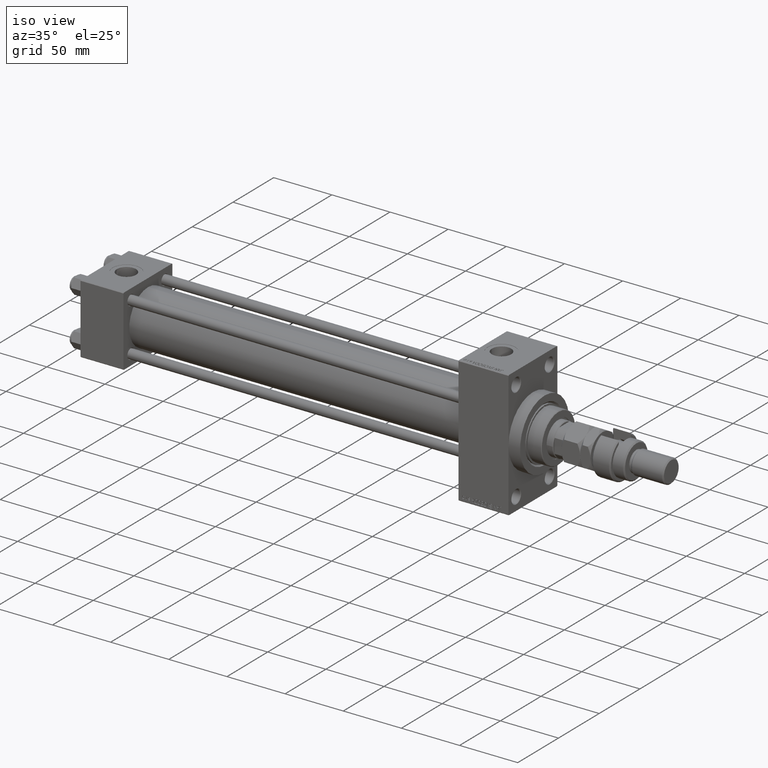
[diagram: clean part render]
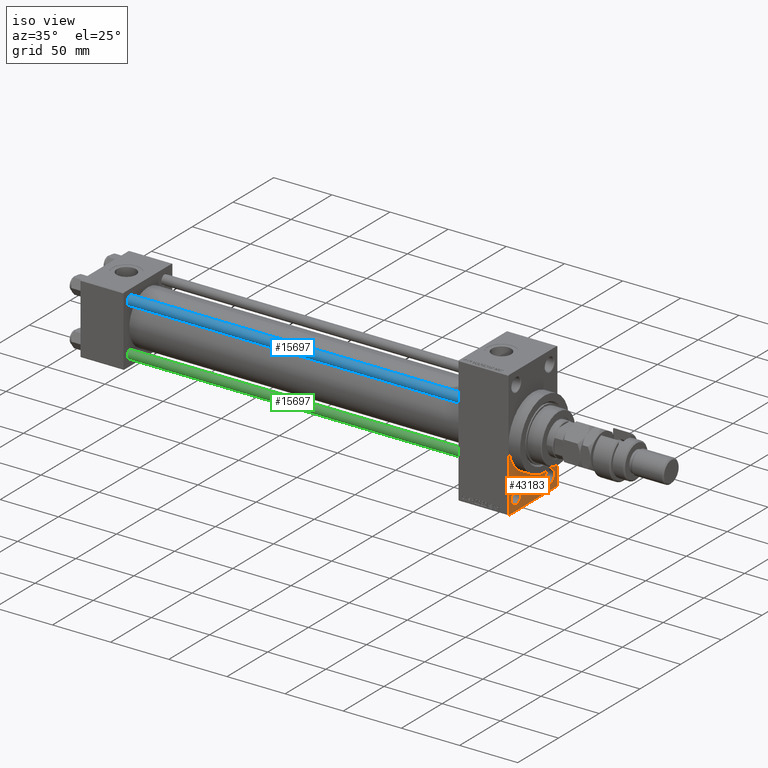
[diagram: same view with three faces highlighted in distinct colors, each labeled with its STEP entity id]
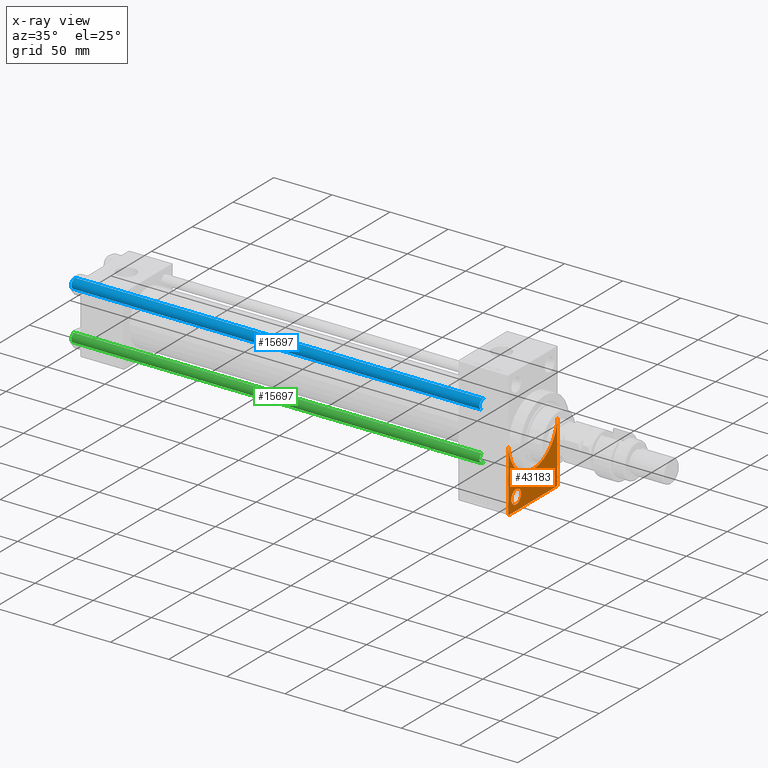
[diagram: x-ray of the same camera — body ghosted, the three highlighted faces saturated]
A machine part, iso view with three faces highlighted in distinct colors.
The next image is the same camera in x-ray (body ghosted, the three faces saturated) — at least one of them is partly hidden behind the body in this view.
Their STEP definitions:

[orange] entity #43183 — the highlighted planar face has unit normal (-1, 0, 0).
#890 = VERTEX_POINT ( 'NONE', #45417 ) ;
#909 = VERTEX_POINT ( 'NONE', #34768 ) ;
#1761 = AXIS2_PLACEMENT_3D ( 'NONE', #18986, #43639, #35157 ) ;
#3053 = AXIS2_PLACEMENT_3D ( 'NONE', #50189, #17084, #45706 ) ;
#3059 = VERTEX_POINT ( 'NONE', #16204 ) ;
#3145 = LINE ( 'NONE', #11353, #41216 ) ;
#3520 = EDGE_CURVE ( 'NONE', #47445, #26583, #35987, .T. ) ;
#3994 = CARTESIAN_POINT ( 'NONE',  ( 367.9999999999999432, -20.50000000000000000, -43.50000000000000000 ) ) ;
#5005 = CARTESIAN_POINT ( 'NONE',  ( 367.9999999999999432, 0.000000000000000000, 0.000000000000000000 ) ) ;
#6014 = CARTESIAN_POINT ( 'NONE',  ( 367.9999999999999432, 30.00000000000000000, 0.000000000000000000 ) ) ;
#6170 = CARTESIAN_POINT ( 'NONE',  ( 367.9999999999999432, -30.00000000000000000, 0.000000000000000000 ) ) ;
#6185 = EDGE_LOOP ( 'NONE', ( #10325, #20421 ) ) ;
#6550 = FACE_BOUND ( 'NONE', #6185, .T. ) ;
#6682 = VECTOR ( 'NONE', #21996, 1000.000000000000000 ) ;
#6980 = EDGE_CURVE ( 'NONE', #890, #3059, #3145, .T. ) ;
#7063 = EDGE_CURVE ( 'NONE', #909, #26442, #33605, .T. ) ;
#7573 = DIRECTION ( 'NONE',  ( -1.000000000000000000, 0.000000000000000000, -0.000000000000000000 ) ) ;
#8234 = DIRECTION ( 'NONE',  ( 0.000000000000000000, 0.000000000000000000, 1.000000000000000000 ) ) ;
#9235 = DIRECTION ( 'NONE',  ( 0.000000000000000000, 0.000000000000000000, -1.000000000000000000 ) ) ;
#9362 = DIRECTION ( 'NONE',  ( 0.000000000000000000, -1.000000000000000000, -1.156482317317871478E-16 ) ) ;
#9615 = CARTESIAN_POINT ( 'NONE',  ( 367.9999999999999432, 29.99999999999999645, -54.49999999999999289 ) ) ;
#9633 = EDGE_CURVE ( 'NONE', #890, #35629, #41449, .T. ) ;
#10325 = ORIENTED_EDGE ( 'NONE', *, *, #26020, .T. ) ;
#10395 = VERTEX_POINT ( 'NONE', #6014 ) ;
#11303 = LINE ( 'NONE', #18743, #34129 ) ;
#11353 = CARTESIAN_POINT ( 'NONE',  ( 367.9999999999999432, 29.99999999999999645, -54.00000000000004974 ) ) ;
#12246 = AXIS2_PLACEMENT_3D ( 'NONE', #16635, #16362, #24839 ) ;
#12336 = EDGE_CURVE ( 'NONE', #10395, #3059, #46372, .T. ) ;
#12402 = AXIS2_PLACEMENT_3D ( 'NONE', #31438, #7573, #38862 ) ;
#12664 = EDGE_CURVE ( 'NONE', #19702, #35629, #23688, .T. ) ;
#13547 = EDGE_CURVE ( 'NONE', #33822, #45603, #30449, .T. ) ;
#14746 = DIRECTION ( 'NONE',  ( -0.000000000000000000, 0.000000000000000000, 1.000000000000000000 ) ) ;
#15242 = AXIS2_PLACEMENT_3D ( 'NONE', #3994, #20690, #8234 ) ;
#15287 = CARTESIAN_POINT ( 'NONE',  ( 367.9999999999999432, 0.000000000000000000, 0.000000000000000000 ) ) ;
#16168 = ORIENTED_EDGE ( 'NONE', *, *, #6980, .T. ) ;
#16178 = AXIS2_PLACEMENT_3D ( 'NONE', #15287, #30664, #14746 ) ;
#16204 = CARTESIAN_POINT ( 'NONE',  ( 367.9999999999999432, 29.99999999999999645, -54.00000000000004974 ) ) ;
#16362 = DIRECTION ( 'NONE',  ( -1.000000000000000000, 0.000000000000000000, -0.000000000000000000 ) ) ;
#16635 = CARTESIAN_POINT ( 'NONE',  ( 367.9999999999999432, 20.50000000000000000, -43.50000000000000000 ) ) ;
#17084 = DIRECTION ( 'NONE',  ( -1.000000000000000000, 0.000000000000000000, -0.000000000000000000 ) ) ;
#17750 = VECTOR ( 'NONE', #51531, 1000.000000000000000 ) ;
#18743 = CARTESIAN_POINT ( 'NONE',  ( 367.9999999999999432, -30.00000000000000000, 54.50000000000000000 ) ) ;
#18986 = CARTESIAN_POINT ( 'NONE',  ( 367.9999999999999432, 0.000000000000000000, 0.000000000000000000 ) ) ;
#19686 = ORIENTED_EDGE ( 'NONE', *, *, #22604, .T. ) ;
#19702 = VERTEX_POINT ( 'NONE', #25842 ) ;
#20421 = ORIENTED_EDGE ( 'NONE', *, *, #7063, .T. ) ;
#20690 = DIRECTION ( 'NONE',  ( -1.000000000000000000, 0.000000000000000000, -0.000000000000000000 ) ) ;
#21201 = ORIENTED_EDGE ( 'NONE', *, *, #42360, .F. ) ;
#21996 = DIRECTION ( 'NONE',  ( 0.000000000000000000, 0.000000000000000000, -1.000000000000000000 ) ) ;
#22604 = EDGE_CURVE ( 'NONE', #47445, #19702, #11303, .T. ) ;
#22706 = PLANE ( 'NONE',  #16178 ) ;
#22729 = ORIENTED_EDGE ( 'NONE', *, *, #9633, .F. ) ;
#23688 = LINE ( 'NONE', #47552, #17750 ) ;
#23928 = CARTESIAN_POINT ( 'NONE',  ( 367.9999999999999432, -20.50000000000000000, -37.49999999999999289 ) ) ;
#24802 = CARTESIAN_POINT ( 'NONE',  ( 367.9999999999999432, -29.50000000000000355, -54.50000000000000000 ) ) ;
#24839 = DIRECTION ( 'NONE',  ( 0.000000000000000000, 0.000000000000000000, 1.000000000000000000 ) ) ;
#25842 = CARTESIAN_POINT ( 'NONE',  ( 367.9999999999999432, -30.00000000000000000, -53.99999999999998579 ) ) ;
#26020 = EDGE_CURVE ( 'NONE', #26442, #909, #38524, .T. ) ;
#26022 = VECTOR ( 'NONE', #9362, 1000.000000000000000 ) ;
#26442 = VERTEX_POINT ( 'NONE', #33255 ) ;
#26583 = VERTEX_POINT ( 'NONE', #31620 ) ;
#27143 = CIRCLE ( 'NONE', #1761, 30.00000000000000000 ) ;
#27348 = ORIENTED_EDGE ( 'NONE', *, *, #32422, .T. ) ;
#27567 = EDGE_LOOP ( 'NONE', ( #19686, #33490, #22729, #16168, #28717, #21201, #50956 ) ) ;
#28415 = EDGE_LOOP ( 'NONE', ( #27348, #35790 ) ) ;
#28717 = ORIENTED_EDGE ( 'NONE', *, *, #12336, .F. ) ;
#30449 = CIRCLE ( 'NONE', #15242, 6.000000000000005329 ) ;
#30664 = DIRECTION ( 'NONE',  ( -1.000000000000000000, 0.000000000000000000, -0.000000000000000000 ) ) ;
#30671 = DIRECTION ( 'NONE',  ( 0.000000000000000000, 0.000000000000000000, -1.000000000000000000 ) ) ;
#31438 = CARTESIAN_POINT ( 'NONE',  ( 367.9999999999999432, 20.50000000000000000, -43.50000000000000000 ) ) ;
#31620 = CARTESIAN_POINT ( 'NONE',  ( 367.9999999999999432, 3.673940397442059178E-15, -30.00000000000000000 ) ) ;
#32422 = EDGE_CURVE ( 'NONE', #45603, #33822, #51298, .T. ) ;
#33255 = CARTESIAN_POINT ( 'NONE',  ( 367.9999999999999432, 20.50000000000000000, -49.50000000000000000 ) ) ;
#33490 = ORIENTED_EDGE ( 'NONE', *, *, #12664, .T. ) ;
#33605 = CIRCLE ( 'NONE', #12402, 6.000000000000005329 ) ;
#33822 = VERTEX_POINT ( 'NONE', #23928 ) ;
#34129 = VECTOR ( 'NONE', #30671, 1000.000000000000000 ) ;
#34768 = CARTESIAN_POINT ( 'NONE',  ( 367.9999999999999432, 20.50000000000000000, -37.49999999999999289 ) ) ;
#35157 = DIRECTION ( 'NONE',  ( 0.000000000000000000, 0.000000000000000000, -1.000000000000000000 ) ) ;
#35629 = VERTEX_POINT ( 'NONE', #24802 ) ;
#35790 = ORIENTED_EDGE ( 'NONE', *, *, #13547, .T. ) ;
#35987 = CIRCLE ( 'NONE', #43590, 30.00000000000000000 ) ;
#38524 = CIRCLE ( 'NONE', #12246, 6.000000000000005329 ) ;
#38633 = FACE_OUTER_BOUND ( 'NONE', #27567, .T. ) ;
#38862 = DIRECTION ( 'NONE',  ( 0.000000000000000000, 0.000000000000000000, 1.000000000000000000 ) ) ;
#38947 = DIRECTION ( 'NONE',  ( -0.000000000000000000, 0.7071067811865868746, 0.7071067811865081598 ) ) ;
#41216 = VECTOR ( 'NONE', #38947, 1000.000000000000000 ) ;
#41449 = LINE ( 'NONE', #9615, #26022 ) ;
#42360 = EDGE_CURVE ( 'NONE', #26583, #10395, #27143, .T. ) ;
#42387 = CARTESIAN_POINT ( 'NONE',  ( 367.9999999999999432, -20.50000000000000000, -49.50000000000000000 ) ) ;
#43183 = ADVANCED_FACE ( 'NONE', ( #51069, #6550, #38633 ), #22706, .F. ) ;
#43590 = AXIS2_PLACEMENT_3D ( 'NONE', #5005, #45556, #9235 ) ;
#43639 = DIRECTION ( 'NONE',  ( 1.000000000000000000, 0.000000000000000000, 0.000000000000000000 ) ) ;
#45417 = CARTESIAN_POINT ( 'NONE',  ( 367.9999999999999432, 29.49999999999999645, -54.49999999999999289 ) ) ;
#45556 = DIRECTION ( 'NONE',  ( 1.000000000000000000, 0.000000000000000000, 0.000000000000000000 ) ) ;
#45603 = VERTEX_POINT ( 'NONE', #42387 ) ;
#45706 = DIRECTION ( 'NONE',  ( 0.000000000000000000, 0.000000000000000000, 1.000000000000000000 ) ) ;
#45859 = CARTESIAN_POINT ( 'NONE',  ( 367.9999999999999432, 29.99999999999999645, 54.49999999999999289 ) ) ;
#46372 = LINE ( 'NONE', #45859, #6682 ) ;
#47445 = VERTEX_POINT ( 'NONE', #6170 ) ;
#47552 = CARTESIAN_POINT ( 'NONE',  ( 367.9999999999999432, -29.50000000000000355, -54.50000000000000000 ) ) ;
#50189 = CARTESIAN_POINT ( 'NONE',  ( 367.9999999999999432, -20.50000000000000000, -43.50000000000000000 ) ) ;
#50956 = ORIENTED_EDGE ( 'NONE', *, *, #3520, .F. ) ;
#51069 = FACE_BOUND ( 'NONE', #28415, .T. ) ;
#51298 = CIRCLE ( 'NONE', #3053, 6.000000000000005329 ) ;
#51531 = DIRECTION ( 'NONE',  ( 0.000000000000000000, 0.7071067811865352493, -0.7071067811865597852 ) ) ;

[blue] entity #15697 — the highlighted cylindrical surface (edge-blend (fillet) strip) has radius 4 mm, axis along (1, 0, 0).
#1319 = VECTOR ( 'NONE', #33995, 1000.000000000000000 ) ;
#1652 = CARTESIAN_POINT ( 'NONE',  ( 4.000000000000000000, 4.898587196589412829E-16, 352.0000000000000000 ) ) ;
#1845 = EDGE_CURVE ( 'NONE', #18030, #20587, #42463, .T. ) ;
#2592 = VERTEX_POINT ( 'NONE', #18935 ) ;
#3336 = EDGE_CURVE ( 'NONE', #20587, #33768, #42003, .T. ) ;
#9138 = EDGE_CURVE ( 'NONE', #2592, #33768, #45611, .T. ) ;
#13770 = DIRECTION ( 'NONE',  ( -0.000000000000000000, -0.000000000000000000, -1.000000000000000000 ) ) ;
#15697 = ADVANCED_FACE ( 'NONE', ( #38503 ), #35302, .T. ) ;
#17975 = CIRCLE ( 'NONE', #45904, 4.000000000000000000 ) ;
#18030 = VERTEX_POINT ( 'NONE', #26238 ) ;
#18342 = CARTESIAN_POINT ( 'NONE',  ( 0.000000000000000000, 0.000000000000000000, 352.0000000000000000 ) ) ;
#18864 = DIRECTION ( 'NONE',  ( -0.000000000000000000, -0.000000000000000000, -1.000000000000000000 ) ) ;
#18935 = CARTESIAN_POINT ( 'NONE',  ( -4.000000000000000000, 0.000000000000000000, 351.5000000000000000 ) ) ;
#19072 = CARTESIAN_POINT ( 'NONE',  ( 0.000000000000000000, 0.000000000000000000, 0.5000000000000004441 ) ) ;
#20587 = VERTEX_POINT ( 'NONE', #27155 ) ;
#22779 = DIRECTION ( 'NONE',  ( -0.000000000000000000, -0.000000000000000000, 1.000000000000000000 ) ) ;
#25214 = DIRECTION ( 'NONE',  ( 0.000000000000000000, 0.000000000000000000, -1.000000000000000000 ) ) ;
#26238 = CARTESIAN_POINT ( 'NONE',  ( 4.000000000000000000, 4.898587196589412829E-16, 351.5000000000000000 ) ) ;
#26757 = ORIENTED_EDGE ( 'NONE', *, *, #47717, .T. ) ;
#27155 = CARTESIAN_POINT ( 'NONE',  ( 4.000000000000000000, 4.898587196589412829E-16, 0.5000000000000004441 ) ) ;
#29702 = CARTESIAN_POINT ( 'NONE',  ( -4.000000000000000000, 0.000000000000000000, 352.0000000000000000 ) ) ;
#31899 = CARTESIAN_POINT ( 'NONE',  ( -4.000000000000000000, 0.000000000000000000, 0.5000000000000004441 ) ) ;
#33694 = DIRECTION ( 'NONE',  ( 1.000000000000000000, 0.000000000000000000, 0.000000000000000000 ) ) ;
#33768 = VERTEX_POINT ( 'NONE', #31899 ) ;
#33995 = DIRECTION ( 'NONE',  ( -0.000000000000000000, -0.000000000000000000, -1.000000000000000000 ) ) ;
#34714 = DIRECTION ( 'NONE',  ( 1.000000000000000000, 0.000000000000000000, 0.000000000000000000 ) ) ;
#35302 = CYLINDRICAL_SURFACE ( 'NONE', #51569, 4.000000000000000000 ) ;
#35333 = VECTOR ( 'NONE', #13770, 1000.000000000000000 ) ;
#38372 = ORIENTED_EDGE ( 'NONE', *, *, #3336, .T. ) ;
#38503 = FACE_OUTER_BOUND ( 'NONE', #48285, .T. ) ;
#42003 = CIRCLE ( 'NONE', #47830, 4.000000000000000000 ) ;
#42463 = LINE ( 'NONE', #1652, #1319 ) ;
#44399 = ORIENTED_EDGE ( 'NONE', *, *, #9138, .F. ) ;
#45611 = LINE ( 'NONE', #29702, #35333 ) ;
#45904 = AXIS2_PLACEMENT_3D ( 'NONE', #49075, #25214, #33694 ) ;
#46830 = ORIENTED_EDGE ( 'NONE', *, *, #1845, .T. ) ;
#47493 = DIRECTION ( 'NONE',  ( -1.000000000000000000, 0.000000000000000000, 0.000000000000000000 ) ) ;
#47717 = EDGE_CURVE ( 'NONE', #2592, #18030, #17975, .T. ) ;
#47830 = AXIS2_PLACEMENT_3D ( 'NONE', #19072, #22779, #34714 ) ;
#48285 = EDGE_LOOP ( 'NONE', ( #26757, #46830, #38372, #44399 ) ) ;
#49075 = CARTESIAN_POINT ( 'NONE',  ( 0.000000000000000000, 0.000000000000000000, 351.5000000000000000 ) ) ;
#51569 = AXIS2_PLACEMENT_3D ( 'NONE', #18342, #18864, #47493 ) ;

[green] entity #15697 — the highlighted cylindrical surface (edge-blend (fillet) strip) has radius 4 mm, axis along (-1, 0, 0).
#1319 = VECTOR ( 'NONE', #33995, 1000.000000000000000 ) ;
#1652 = CARTESIAN_POINT ( 'NONE',  ( 4.000000000000000000, 4.898587196589412829E-16, 352.0000000000000000 ) ) ;
#1845 = EDGE_CURVE ( 'NONE', #18030, #20587, #42463, .T. ) ;
#2592 = VERTEX_POINT ( 'NONE', #18935 ) ;
#3336 = EDGE_CURVE ( 'NONE', #20587, #33768, #42003, .T. ) ;
#9138 = EDGE_CURVE ( 'NONE', #2592, #33768, #45611, .T. ) ;
#13770 = DIRECTION ( 'NONE',  ( -0.000000000000000000, -0.000000000000000000, -1.000000000000000000 ) ) ;
#15697 = ADVANCED_FACE ( 'NONE', ( #38503 ), #35302, .T. ) ;
#17975 = CIRCLE ( 'NONE', #45904, 4.000000000000000000 ) ;
#18030 = VERTEX_POINT ( 'NONE', #26238 ) ;
#18342 = CARTESIAN_POINT ( 'NONE',  ( 0.000000000000000000, 0.000000000000000000, 352.0000000000000000 ) ) ;
#18864 = DIRECTION ( 'NONE',  ( -0.000000000000000000, -0.000000000000000000, -1.000000000000000000 ) ) ;
#18935 = CARTESIAN_POINT ( 'NONE',  ( -4.000000000000000000, 0.000000000000000000, 351.5000000000000000 ) ) ;
#19072 = CARTESIAN_POINT ( 'NONE',  ( 0.000000000000000000, 0.000000000000000000, 0.5000000000000004441 ) ) ;
#20587 = VERTEX_POINT ( 'NONE', #27155 ) ;
#22779 = DIRECTION ( 'NONE',  ( -0.000000000000000000, -0.000000000000000000, 1.000000000000000000 ) ) ;
#25214 = DIRECTION ( 'NONE',  ( 0.000000000000000000, 0.000000000000000000, -1.000000000000000000 ) ) ;
#26238 = CARTESIAN_POINT ( 'NONE',  ( 4.000000000000000000, 4.898587196589412829E-16, 351.5000000000000000 ) ) ;
#26757 = ORIENTED_EDGE ( 'NONE', *, *, #47717, .T. ) ;
#27155 = CARTESIAN_POINT ( 'NONE',  ( 4.000000000000000000, 4.898587196589412829E-16, 0.5000000000000004441 ) ) ;
#29702 = CARTESIAN_POINT ( 'NONE',  ( -4.000000000000000000, 0.000000000000000000, 352.0000000000000000 ) ) ;
#31899 = CARTESIAN_POINT ( 'NONE',  ( -4.000000000000000000, 0.000000000000000000, 0.5000000000000004441 ) ) ;
#33694 = DIRECTION ( 'NONE',  ( 1.000000000000000000, 0.000000000000000000, 0.000000000000000000 ) ) ;
#33768 = VERTEX_POINT ( 'NONE', #31899 ) ;
#33995 = DIRECTION ( 'NONE',  ( -0.000000000000000000, -0.000000000000000000, -1.000000000000000000 ) ) ;
#34714 = DIRECTION ( 'NONE',  ( 1.000000000000000000, 0.000000000000000000, 0.000000000000000000 ) ) ;
#35302 = CYLINDRICAL_SURFACE ( 'NONE', #51569, 4.000000000000000000 ) ;
#35333 = VECTOR ( 'NONE', #13770, 1000.000000000000000 ) ;
#38372 = ORIENTED_EDGE ( 'NONE', *, *, #3336, .T. ) ;
#38503 = FACE_OUTER_BOUND ( 'NONE', #48285, .T. ) ;
#42003 = CIRCLE ( 'NONE', #47830, 4.000000000000000000 ) ;
#42463 = LINE ( 'NONE', #1652, #1319 ) ;
#44399 = ORIENTED_EDGE ( 'NONE', *, *, #9138, .F. ) ;
#45611 = LINE ( 'NONE', #29702, #35333 ) ;
#45904 = AXIS2_PLACEMENT_3D ( 'NONE', #49075, #25214, #33694 ) ;
#46830 = ORIENTED_EDGE ( 'NONE', *, *, #1845, .T. ) ;
#47493 = DIRECTION ( 'NONE',  ( -1.000000000000000000, 0.000000000000000000, 0.000000000000000000 ) ) ;
#47717 = EDGE_CURVE ( 'NONE', #2592, #18030, #17975, .T. ) ;
#47830 = AXIS2_PLACEMENT_3D ( 'NONE', #19072, #22779, #34714 ) ;
#48285 = EDGE_LOOP ( 'NONE', ( #26757, #46830, #38372, #44399 ) ) ;
#49075 = CARTESIAN_POINT ( 'NONE',  ( 0.000000000000000000, 0.000000000000000000, 351.5000000000000000 ) ) ;
#51569 = AXIS2_PLACEMENT_3D ( 'NONE', #18342, #18864, #47493 ) ;